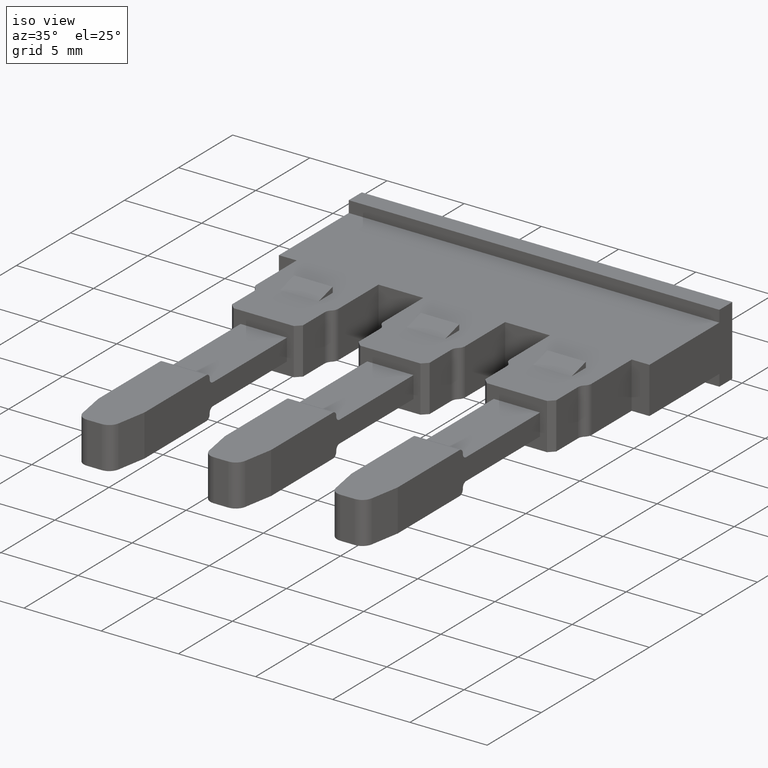
[diagram: clean part render]
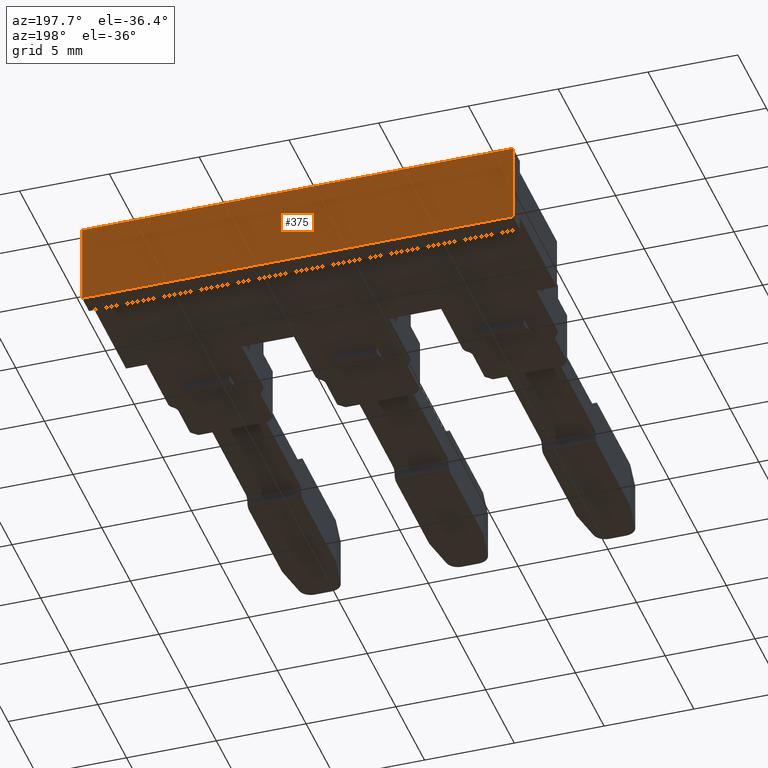
[diagram: tour spotlight — one face highlighted and labeled with its STEP entity id]
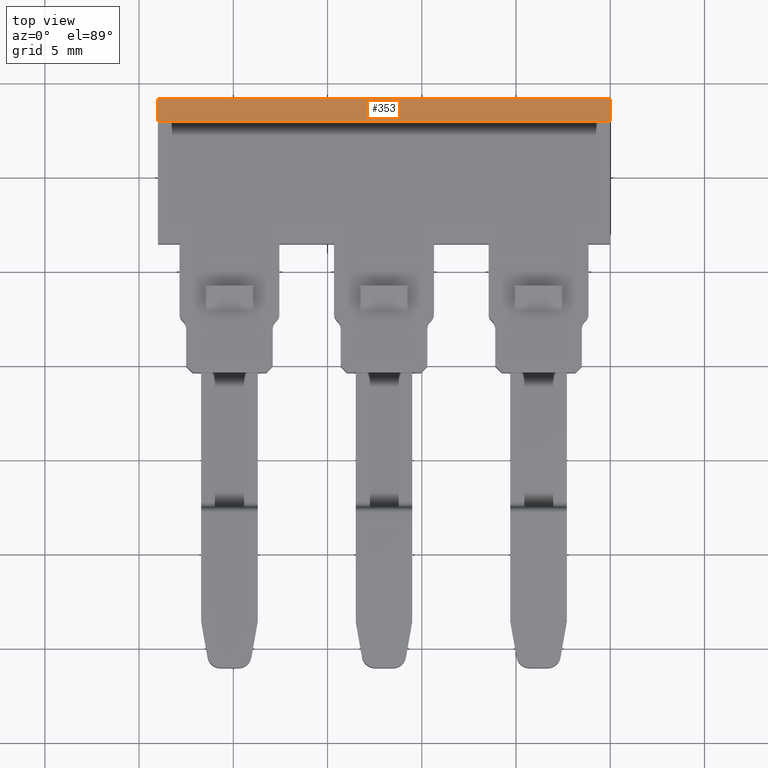
[diagram: tour spotlight — one face highlighted and labeled with its STEP entity id]
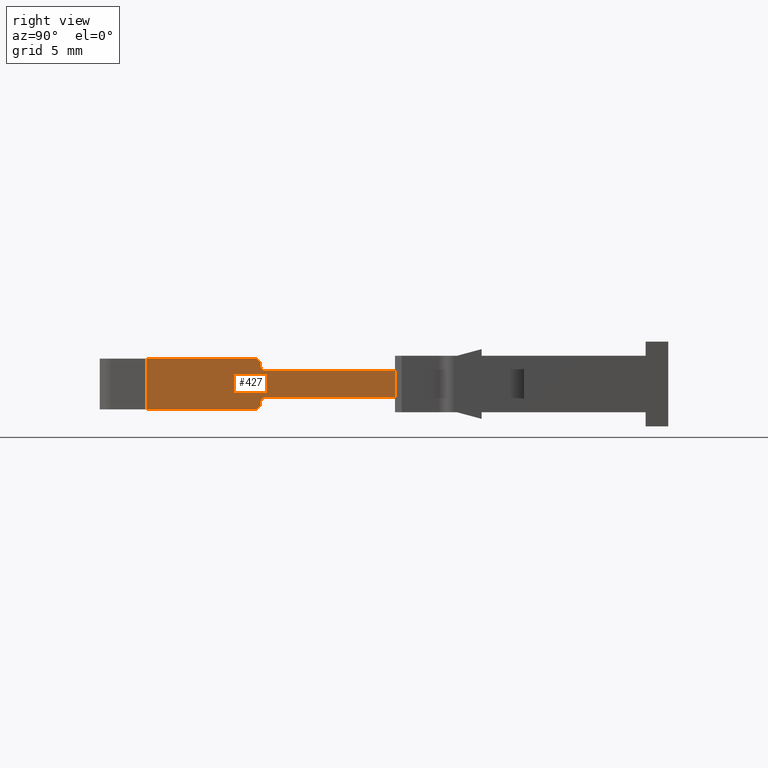
[diagram: tour spotlight — one face highlighted and labeled with its STEP entity id]
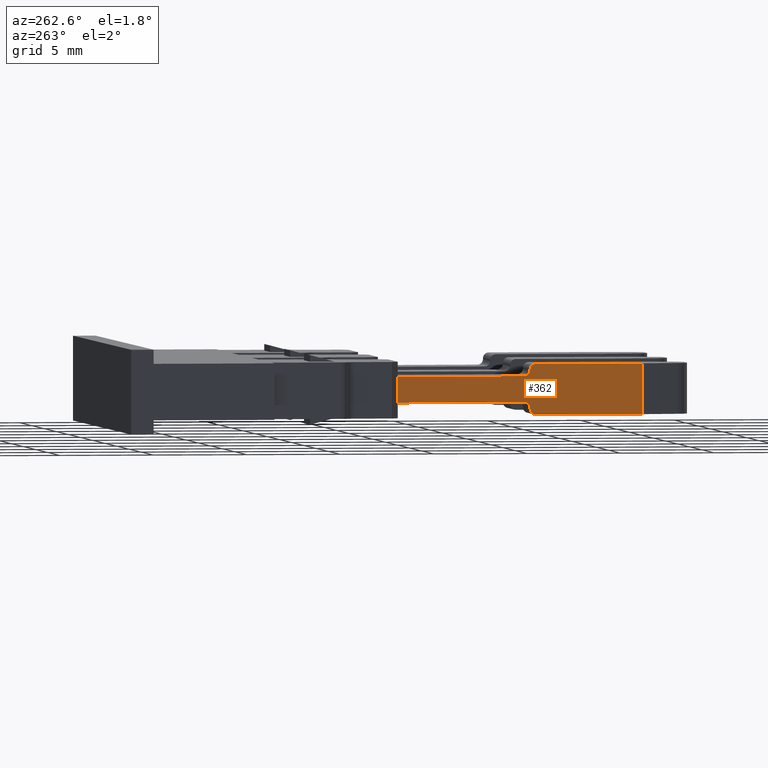
[diagram: tour spotlight — one face highlighted and labeled with its STEP entity id]
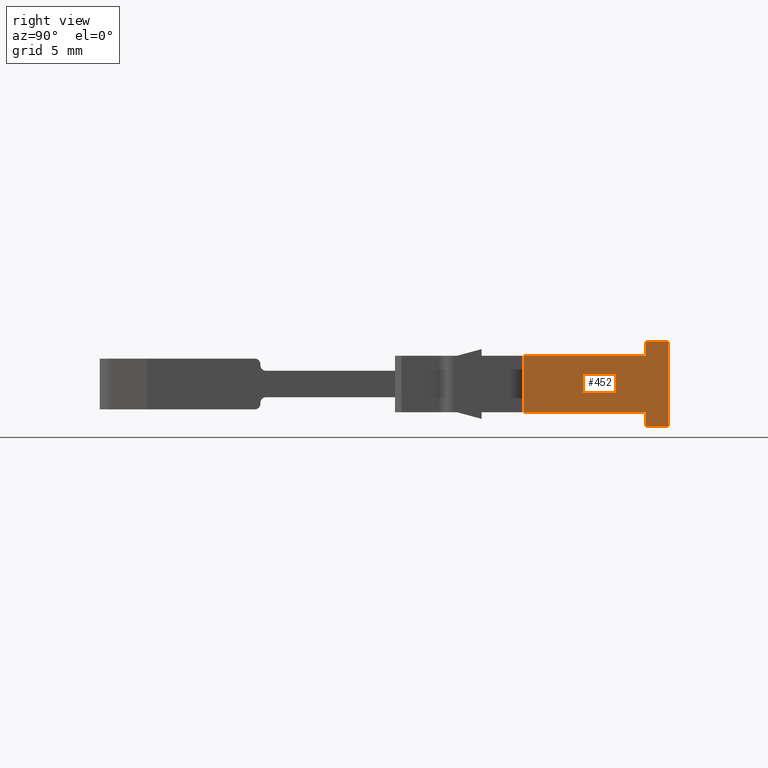
[diagram: tour spotlight — one face highlighted and labeled with its STEP entity id]
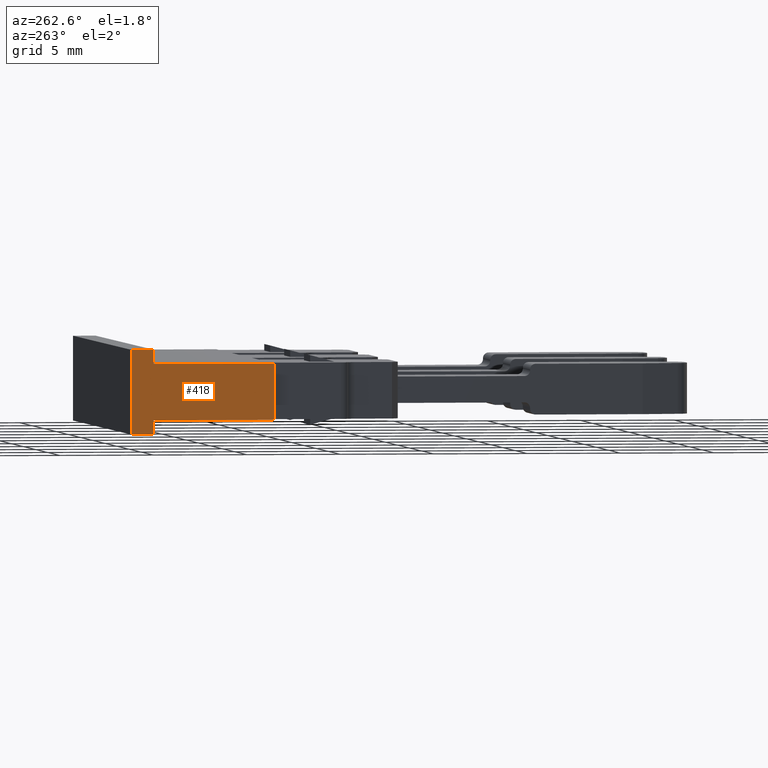
[diagram: tour spotlight — one face highlighted and labeled with its STEP entity id]
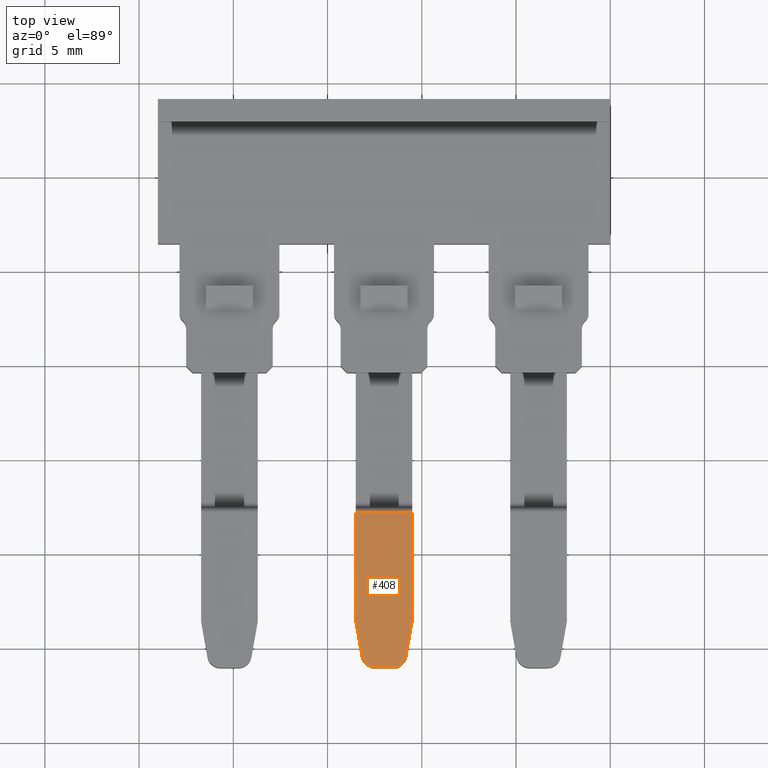
[diagram: tour spotlight — one face highlighted and labeled with its STEP entity id]
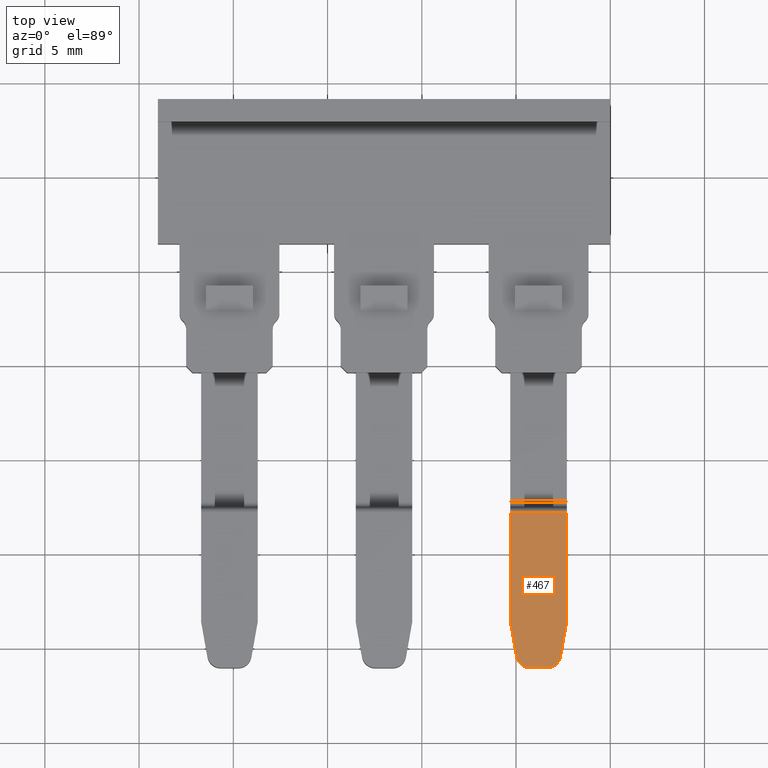
[diagram: tour spotlight — one face highlighted and labeled with its STEP entity id]
A machine part: a face-by-face anatomy tour. The part has 127 B-rep faces; the first image is the clean iso view, then the 8 largest visible faces are spotlighted one at a time (largest first), each with its STEP entity span.

Face 1 — auxiliary view, entity #375. In plain terms, the highlighted planar face has unit normal (0, -1, 0).
Definition (entity closure, byte-faithful):
#12 = EDGE_CURVE ( 'NONE', #1525, #1626, #700, .T. ) ;
#15 = EDGE_CURVE ( 'NONE', #1498, #1626, #680, .T. ) ;
#32 = EDGE_CURVE ( 'NONE', #1498, #1521, #728, .T. ) ;
#40 = EDGE_CURVE ( 'NONE', #1525, #1521, #802, .T. ) ;
#375 = ADVANCED_FACE ( 'NONE', ( #3418 ), #3429, .F. ) ;
#680 = LINE ( 'NONE', #688, #3543 ) ;
#687 = CARTESIAN_POINT ( 'NONE',  ( 1130.994470802330200, 674.1078760720547500, 3.000000000000000000 ) ) ;
#688 = CARTESIAN_POINT ( 'NONE',  ( 1130.994470802330200, 674.1078760720547500, 3.750000000000000000 ) ) ;
#694 = DIRECTION ( 'NONE',  ( -0.0000000000000000000, -0.0000000000000000000, 1.000000000000000000 ) ) ;
#700 = LINE ( 'NONE', #687, #3560 ) ;
#711 = DIRECTION ( 'NONE',  ( -1.000000000000000000, -0.0000000000000000000, -0.0000000000000000000 ) ) ;
#728 = LINE ( 'NONE', #755, #3609 ) ;
#746 = DIRECTION ( 'NONE',  ( -0.0000000000000000000, -0.0000000000000000000, -1.000000000000000000 ) ) ;
#755 = CARTESIAN_POINT ( 'NONE',  ( 1154.994472239529600, 674.1078760720547500, 3.000000000000000000 ) ) ;
#798 = DIRECTION ( 'NONE',  ( 1.000000000000000000, 0.0000000000000000000, 0.0000000000000000000 ) ) ;
#802 = LINE ( 'NONE', #803, #3611 ) ;
#803 = CARTESIAN_POINT ( 'NONE',  ( 1130.994470802330200, 674.1078760720547500, -0.7499999999999997800 ) ) ;
#1498 = VERTEX_POINT ( 'NONE', #3016 ) ;
#1521 = VERTEX_POINT ( 'NONE', #3001 ) ;
#1525 = VERTEX_POINT ( 'NONE', #3010 ) ;
#1626 = VERTEX_POINT ( 'NONE', #3051 ) ;
#1632 = ORIENTED_EDGE ( 'NONE', *, *, #15, .F. ) ;
#1642 = ORIENTED_EDGE ( 'NONE', *, *, #40, .F. ) ;
#1655 = ORIENTED_EDGE ( 'NONE', *, *, #32, .T. ) ;
#1659 = ORIENTED_EDGE ( 'NONE', *, *, #12, .T. ) ;
#2315 = EDGE_LOOP ( 'NONE', ( #1655, #1642, #1659, #1632 ) ) ;
#3001 = CARTESIAN_POINT ( 'NONE',  ( 1154.994472239529600, 674.1078760720547500, -0.7499999999999997800 ) ) ;
#3010 = CARTESIAN_POINT ( 'NONE',  ( 1130.994470802330200, 674.1078760720547500, -0.7499999999999997800 ) ) ;
#3016 = CARTESIAN_POINT ( 'NONE',  ( 1154.994472239529600, 674.1078760720547500, 3.750000000000000000 ) ) ;
#3051 = CARTESIAN_POINT ( 'NONE',  ( 1130.994470802330200, 674.1078760720547500, 3.750000000000000000 ) ) ;
#3400 = CARTESIAN_POINT ( 'NONE',  ( 1130.994470802330200, 674.1078760720547500, 3.000000000000000000 ) ) ;
#3406 = DIRECTION ( 'NONE',  ( 0.0000000000000000000, -1.000000000000000000, 0.0000000000000000000 ) ) ;
#3418 = FACE_OUTER_BOUND ( 'NONE', #2315, .T. ) ;
#3429 = PLANE ( 'NONE',  #3979 ) ;
#3438 = DIRECTION ( 'NONE',  ( 0.0000000000000000000, -0.0000000000000000000, -1.000000000000000000 ) ) ;
#3543 = VECTOR ( 'NONE', #711, 1000.000000000000000 ) ;
#3560 = VECTOR ( 'NONE', #694, 1000.000000000000000 ) ;
#3609 = VECTOR ( 'NONE', #746, 1000.000000000000000 ) ;
#3611 = VECTOR ( 'NONE', #798, 1000.000000000000000 ) ;
#3979 = AXIS2_PLACEMENT_3D ( 'NONE', #3400, #3406, #3438 ) ;

Face 2 — top view, entity #353. In plain terms, the highlighted planar face has unit normal (0, 0, 1).
Definition (entity closure, byte-faithful):
#13 = EDGE_CURVE ( 'NONE', #1626, #1624, #718, .T. ) ;
#15 = EDGE_CURVE ( 'NONE', #1498, #1626, #680, .T. ) ;
#28 = EDGE_CURVE ( 'NONE', #1620, #1624, #758, .T. ) ;
#29 = EDGE_CURVE ( 'NONE', #1620, #1498, #737, .T. ) ;
#353 = ADVANCED_FACE ( 'NONE', ( #3286 ), #3331, .T. ) ;
#676 = DIRECTION ( 'NONE',  ( 0.0000000000000000000, -1.000000000000000000, -0.0000000000000000000 ) ) ;
#680 = LINE ( 'NONE', #688, #3543 ) ;
#688 = CARTESIAN_POINT ( 'NONE',  ( 1130.994470802330200, 674.1078760720547500, 3.750000000000000000 ) ) ;
#711 = DIRECTION ( 'NONE',  ( -1.000000000000000000, -0.0000000000000000000, -0.0000000000000000000 ) ) ;
#717 = CARTESIAN_POINT ( 'NONE',  ( 1130.994470802330200, 672.9078760720548200, 3.750000000000000000 ) ) ;
#718 = LINE ( 'NONE', #717, #3545 ) ;
#725 = CARTESIAN_POINT ( 'NONE',  ( 1154.994472239529600, 672.9078760720548200, 3.750000000000000000 ) ) ;
#737 = LINE ( 'NONE', #725, #3587 ) ;
#748 = DIRECTION ( 'NONE',  ( -1.000000000000000000, -0.0000000000000000000, -0.0000000000000000000 ) ) ;
#758 = LINE ( 'NONE', #763, #3566 ) ;
#759 = DIRECTION ( 'NONE',  ( -0.0000000000000000000, 1.000000000000000000, 0.0000000000000000000 ) ) ;
#763 = CARTESIAN_POINT ( 'NONE',  ( 1130.994470802330200, 672.9078760720548200, 3.750000000000000000 ) ) ;
#1498 = VERTEX_POINT ( 'NONE', #3016 ) ;
#1620 = VERTEX_POINT ( 'NONE', #3064 ) ;
#1624 = VERTEX_POINT ( 'NONE', #3024 ) ;
#1626 = VERTEX_POINT ( 'NONE', #3051 ) ;
#1653 = ORIENTED_EDGE ( 'NONE', *, *, #13, .T. ) ;
#1677 = ORIENTED_EDGE ( 'NONE', *, *, #29, .T. ) ;
#1678 = ORIENTED_EDGE ( 'NONE', *, *, #15, .T. ) ;
#1692 = ORIENTED_EDGE ( 'NONE', *, *, #28, .F. ) ;
#2302 = EDGE_LOOP ( 'NONE', ( #1678, #1653, #1692, #1677 ) ) ;
#3016 = CARTESIAN_POINT ( 'NONE',  ( 1154.994472239529600, 674.1078760720547500, 3.750000000000000000 ) ) ;
#3024 = CARTESIAN_POINT ( 'NONE',  ( 1130.994470802330200, 672.9078760720548200, 3.750000000000000000 ) ) ;
#3051 = CARTESIAN_POINT ( 'NONE',  ( 1130.994470802330200, 674.1078760720547500, 3.750000000000000000 ) ) ;
#3064 = CARTESIAN_POINT ( 'NONE',  ( 1154.994472239529600, 672.9078760720548200, 3.750000000000000000 ) ) ;
#3286 = FACE_OUTER_BOUND ( 'NONE', #2302, .T. ) ;
#3287 = DIRECTION ( 'NONE',  ( 0.0000000000000000000, 0.0000000000000000000, 1.000000000000000000 ) ) ;
#3311 = CARTESIAN_POINT ( 'NONE',  ( 1130.994470802330200, 672.9078760720548200, 3.750000000000000000 ) ) ;
#3312 = DIRECTION ( 'NONE',  ( 1.000000000000000000, 0.0000000000000000000, -0.0000000000000000000 ) ) ;
#3331 = PLANE ( 'NONE',  #3987 ) ;
#3543 = VECTOR ( 'NONE', #711, 1000.000000000000000 ) ;
#3545 = VECTOR ( 'NONE', #676, 1000.000000000000000 ) ;
#3566 = VECTOR ( 'NONE', #748, 1000.000000000000000 ) ;
#3587 = VECTOR ( 'NONE', #759, 1000.000000000000000 ) ;
#3987 = AXIS2_PLACEMENT_3D ( 'NONE', #3311, #3287, #3312 ) ;

Face 3 — right view, entity #427. In plain terms, the highlighted planar face has unit normal (-1, -0, -0).
Definition (entity closure, byte-faithful):
#257 = EDGE_CURVE ( 'NONE', #631, #607, #1439, .T. ) ;
#271 = EDGE_CURVE ( 'NONE', #599, #628, #1482, .T. ) ;
#274 = EDGE_CURVE ( 'NONE', #639, #662, #3870, .T. ) ;
#287 = EDGE_CURVE ( 'NONE', #623, #612, #3106, .T. ) ;
#294 = EDGE_CURVE ( 'NONE', #597, #662, #3095, .T. ) ;
#310 = EDGE_CURVE ( 'NONE', #606, #639, #3175, .T. ) ;
#312 = EDGE_CURVE ( 'NONE', #628, #606, #3158, .T. ) ;
#332 = EDGE_CURVE ( 'NONE', #613, #603, #3217, .T. ) ;
#338 = EDGE_CURVE ( 'NONE', #603, #597, #3909, .T. ) ;
#343 = EDGE_CURVE ( 'NONE', #612, #631, #3916, .T. ) ;
#355 = EDGE_CURVE ( 'NONE', #623, #599, #3946, .T. ) ;
#358 = EDGE_CURVE ( 'NONE', #613, #607, #3329, .T. ) ;
#427 = ADVANCED_FACE ( 'NONE', ( #2575 ), #2577, .F. ) ;
#597 = VERTEX_POINT ( 'NONE', #2946 ) ;
#599 = VERTEX_POINT ( 'NONE', #2906 ) ;
#603 = VERTEX_POINT ( 'NONE', #2908 ) ;
#606 = VERTEX_POINT ( 'NONE', #2928 ) ;
#607 = VERTEX_POINT ( 'NONE', #2953 ) ;
#612 = VERTEX_POINT ( 'NONE', #2895 ) ;
#613 = VERTEX_POINT ( 'NONE', #2938 ) ;
#623 = VERTEX_POINT ( 'NONE', #2971 ) ;
#628 = VERTEX_POINT ( 'NONE', #2984 ) ;
#631 = VERTEX_POINT ( 'NONE', #3014 ) ;
#639 = VERTEX_POINT ( 'NONE', #2961 ) ;
#662 = VERTEX_POINT ( 'NONE', #2996 ) ;
#1414 = CARTESIAN_POINT ( 'NONE',  ( 1152.694499627732700, 641.3475629657206100, 0.8000061035156751400 ) ) ;
#1422 = DIRECTION ( 'NONE',  ( -1.259368144656452000E-037, 1.000000000000000000, 2.347622273454535600E-024 ) ) ;
#1439 = LINE ( 'NONE', #1414, #3863 ) ;
#1457 = CARTESIAN_POINT ( 'NONE',  ( 1152.694500057496300, 652.1699856249184700, 2.547804784775002100 ) ) ;
#1461 = DIRECTION ( 'NONE',  ( 7.162730294145293700E-007, -0.9999999999997434300, 0.0000000000000000000 ) ) ;
#1465 = DIRECTION ( 'NONE',  ( 7.162729668646924300E-007, -0.9999999999997435400, 0.0000000000000000000 ) ) ;
#1468 = CARTESIAN_POINT ( 'NONE',  ( 1152.694513078971600, 633.9904998856812900, 0.1522013187407241500 ) ) ;
#1469 = DIRECTION ( 'NONE',  ( -0.9999999999997435400, -7.162730294145294800E-007, -5.364441115149939900E-014 ) ) ;
#1482 = LINE ( 'NONE', #1468, #3822 ) ;
#1577 = EDGE_LOOP ( 'NONE', ( #2217, #2218, #2150, #2211, #2219, #2240, #2257, #2237, #2228, #2234, #2243, #2225 ) ) ;
#2150 = ORIENTED_EDGE ( 'NONE', *, *, #312, .F. ) ;
#2211 = ORIENTED_EDGE ( 'NONE', *, *, #271, .F. ) ;
#2217 = ORIENTED_EDGE ( 'NONE', *, *, #274, .F. ) ;
#2218 = ORIENTED_EDGE ( 'NONE', *, *, #310, .F. ) ;
#2219 = ORIENTED_EDGE ( 'NONE', *, *, #355, .F. ) ;
#2225 = ORIENTED_EDGE ( 'NONE', *, *, #294, .T. ) ;
#2228 = ORIENTED_EDGE ( 'NONE', *, *, #358, .F. ) ;
#2234 = ORIENTED_EDGE ( 'NONE', *, *, #332, .T. ) ;
#2237 = ORIENTED_EDGE ( 'NONE', *, *, #257, .T. ) ;
#2240 = ORIENTED_EDGE ( 'NONE', *, *, #287, .T. ) ;
#2243 = ORIENTED_EDGE ( 'NONE', *, *, #338, .T. ) ;
#2257 = ORIENTED_EDGE ( 'NONE', *, *, #343, .T. ) ;
#2569 = DIRECTION ( 'NONE',  ( 7.162730294145293700E-007, -0.9999999999997434300, 0.0000000000000000000 ) ) ;
#2575 = FACE_OUTER_BOUND ( 'NONE', #1577, .T. ) ;
#2577 = PLANE ( 'NONE',  #4063 ) ;
#2581 = DIRECTION ( 'NONE',  ( -0.9999999999997435400, -7.162730294145294800E-007, -5.364441115149939300E-014 ) ) ;
#2614 = CARTESIAN_POINT ( 'NONE',  ( 1152.694513078971600, 633.9904998856812900, 1.500000000000050400 ) ) ;
#2895 = CARTESIAN_POINT ( 'NONE',  ( 1152.694499842614500, 652.4699856249416100, 0.5000061035156794200 ) ) ;
#2906 = CARTESIAN_POINT ( 'NONE',  ( 1152.694500057496500, 652.1699856249251800, 0.1522013187407402500 ) ) ;
#2908 = CARTESIAN_POINT ( 'NONE',  ( 1152.694494728928900, 652.7699856250221700, 2.200000000000050400 ) ) ;
#2928 = CARTESIAN_POINT ( 'NONE',  ( 1152.694502719367600, 646.4455650513607500, 2.847804784775002300 ) ) ;
#2938 = CARTESIAN_POINT ( 'NONE',  ( 1152.694494728928900, 659.6092820011524500, 2.199999999999997100 ) ) ;
#2946 = CARTESIAN_POINT ( 'NONE',  ( 1152.694499842614300, 652.4699856249416100, 2.500000000000054200 ) ) ;
#2953 = CARTESIAN_POINT ( 'NONE',  ( 1152.694497994798000, 659.6092820011524500, 0.8000061035156753600 ) ) ;
#2961 = CARTESIAN_POINT ( 'NONE',  ( 1152.694500057496300, 652.1699856249198300, 2.847804784774985900 ) ) ;
#2971 = CARTESIAN_POINT ( 'NONE',  ( 1152.694499842614500, 652.4699856249416100, 0.4522013187406444000 ) ) ;
#2984 = CARTESIAN_POINT ( 'NONE',  ( 1152.694502762740300, 646.4455652973382500, 0.1522013187407222600 ) ) ;
#2996 = CARTESIAN_POINT ( 'NONE',  ( 1152.694499842614300, 652.4699856249416100, 2.547804784775004700 ) ) ;
#3014 = CARTESIAN_POINT ( 'NONE',  ( 1152.694499627732700, 652.7699856249647600, 0.8000061035156751400 ) ) ;
#3074 = DIRECTION ( 'NONE',  ( -7.385219485357330600E-024, -6.294261101327853900E-019, 1.000000000000000000 ) ) ;
#3081 = DIRECTION ( 'NONE',  ( -7.385219485357330600E-024, -6.294261101327853900E-019, 1.000000000000000000 ) ) ;
#3095 = LINE ( 'NONE', #3111, #3911 ) ;
#3096 = CARTESIAN_POINT ( 'NONE',  ( 1152.694499842614500, 652.4699856249416100, -8.884767489098056400 ) ) ;
#3106 = LINE ( 'NONE', #3096, #3843 ) ;
#3111 = CARTESIAN_POINT ( 'NONE',  ( 1152.694499842614300, 652.4699856249416100, -8.894767489098054400 ) ) ;
#3144 = CARTESIAN_POINT ( 'NONE',  ( 1152.694504157744400, 646.4455650513617700, 1.500000000000050400 ) ) ;
#3158 = LINE ( 'NONE', #3144, #3930 ) ;
#3171 = DIRECTION ( 'NONE',  ( -7.162730294145293700E-007, 0.9999999999997434300, -0.0000000000000000000 ) ) ;
#3175 = LINE ( 'NONE', #3186, #3890 ) ;
#3184 = DIRECTION ( 'NONE',  ( -5.364441115148562900E-014, -3.842404488664303600E-020, 1.000000000000000000 ) ) ;
#3186 = CARTESIAN_POINT ( 'NONE',  ( 1152.694513078971600, 633.9904998856812900, 2.847804784775002800 ) ) ;
#3217 = LINE ( 'NONE', #3232, #3936 ) ;
#3232 = CARTESIAN_POINT ( 'NONE',  ( 1152.694494728928900, 641.3475629657206100, 2.200000000000050400 ) ) ;
#3259 = DIRECTION ( 'NONE',  ( 7.162729668644273000E-007, -0.9999999999997435400, 0.0000000000000000000 ) ) ;
#3260 = DIRECTION ( 'NONE',  ( -0.9999999999997435400, -7.162730294145294800E-007, -5.364441115149939900E-014 ) ) ;
#3261 = DIRECTION ( 'NONE',  ( 1.259368144656452000E-037, -1.000000000000000000, -2.347622273454535600E-024 ) ) ;
#3272 = CARTESIAN_POINT ( 'NONE',  ( 1152.694499627732500, 652.7699856249647600, 2.500000000000050600 ) ) ;
#3274 = CARTESIAN_POINT ( 'NONE',  ( 1152.694499627732700, 652.7699856249647600, 0.5000061035156752000 ) ) ;
#3275 = DIRECTION ( 'NONE',  ( -0.9999999999997435400, -7.162730294145294800E-007, -5.364441115149939900E-014 ) ) ;
#3276 = DIRECTION ( 'NONE',  ( 7.162729668644273000E-007, -0.9999999999997435400, 0.0000000000000000000 ) ) ;
#3284 = DIRECTION ( 'NONE',  ( 5.364441115148562900E-014, 3.842404488664303600E-020, -1.000000000000000000 ) ) ;
#3301 = DIRECTION ( 'NONE',  ( -0.9999999999997435400, -7.162730294145294800E-007, -5.364441115149939900E-014 ) ) ;
#3307 = CARTESIAN_POINT ( 'NONE',  ( 1152.694500057496500, 652.1699856249185800, 0.4522013187407238300 ) ) ;
#3322 = DIRECTION ( 'NONE',  ( 7.162729668646924300E-007, -0.9999999999997435400, 0.0000000000000000000 ) ) ;
#3329 = LINE ( 'NONE', #3330, #3998 ) ;
#3330 = CARTESIAN_POINT ( 'NONE',  ( 1152.694494728928900, 659.6092820011524500, 1.500000000000050400 ) ) ;
#3822 = VECTOR ( 'NONE', #1461, 1000.000000000000100 ) ;
#3842 = AXIS2_PLACEMENT_3D ( 'NONE', #1457, #1469, #1465 ) ;
#3843 = VECTOR ( 'NONE', #3081, 1000.000000000000000 ) ;
#3863 = VECTOR ( 'NONE', #1422, 1000.000000000000000 ) ;
#3870 = CIRCLE ( 'NONE', #3842, 0.2999999999999328800 ) ;
#3890 = VECTOR ( 'NONE', #3171, 1000.000000000000100 ) ;
#3909 = CIRCLE ( 'NONE', #3914, 0.3000000000000439000 ) ;
#3911 = VECTOR ( 'NONE', #3074, 1000.000000000000000 ) ;
#3914 = AXIS2_PLACEMENT_3D ( 'NONE', #3272, #3260, #3259 ) ;
#3916 = CIRCLE ( 'NONE', #3931, 0.3000000000000439000 ) ;
#3930 = VECTOR ( 'NONE', #3184, 1000.000000000000000 ) ;
#3931 = AXIS2_PLACEMENT_3D ( 'NONE', #3274, #3275, #3276 ) ;
#3936 = VECTOR ( 'NONE', #3261, 1000.000000000000000 ) ;
#3946 = CIRCLE ( 'NONE', #3953, 0.2999999999999328800 ) ;
#3953 = AXIS2_PLACEMENT_3D ( 'NONE', #3307, #3301, #3322 ) ;
#3998 = VECTOR ( 'NONE', #3284, 1000.000000000000000 ) ;
#4063 = AXIS2_PLACEMENT_3D ( 'NONE', #2614, #2581, #2569 ) ;

Face 4 — auxiliary view, entity #362. In plain terms, the highlighted planar face has unit normal (1, 0, 0).
Definition (entity closure, byte-faithful):
#115 = EDGE_CURVE ( 'NONE', #555, #513, #3656, .T. ) ;
#133 = EDGE_CURVE ( 'NONE', #570, #588, #1057, .T. ) ;
#135 = EDGE_CURVE ( 'NONE', #571, #582, #1078, .T. ) ;
#137 = EDGE_CURVE ( 'NONE', #549, #509, #1062, .T. ) ;
#148 = EDGE_CURVE ( 'NONE', #509, #555, #1075, .T. ) ;
#149 = EDGE_CURVE ( 'NONE', #567, #586, #3744, .T. ) ;
#160 = EDGE_CURVE ( 'NONE', #567, #605, #1120, .T. ) ;
#169 = EDGE_CURVE ( 'NONE', #605, #570, #3715, .T. ) ;
#175 = EDGE_CURVE ( 'NONE', #582, #545, #3721, .T. ) ;
#187 = EDGE_CURVE ( 'NONE', #545, #513, #1197, .T. ) ;
#212 = EDGE_CURVE ( 'NONE', #571, #588, #1275, .T. ) ;
#227 = EDGE_CURVE ( 'NONE', #586, #549, #1319, .T. ) ;
#362 = ADVANCED_FACE ( 'NONE', ( #3340 ), #3353, .F. ) ;
#509 = VERTEX_POINT ( 'NONE', #2876 ) ;
#513 = VERTEX_POINT ( 'NONE', #2829 ) ;
#545 = VERTEX_POINT ( 'NONE', #2862 ) ;
#549 = VERTEX_POINT ( 'NONE', #2888 ) ;
#555 = VERTEX_POINT ( 'NONE', #2896 ) ;
#567 = VERTEX_POINT ( 'NONE', #2901 ) ;
#570 = VERTEX_POINT ( 'NONE', #2900 ) ;
#571 = VERTEX_POINT ( 'NONE', #2919 ) ;
#582 = VERTEX_POINT ( 'NONE', #2935 ) ;
#586 = VERTEX_POINT ( 'NONE', #2922 ) ;
#588 = VERTEX_POINT ( 'NONE', #2952 ) ;
#605 = VERTEX_POINT ( 'NONE', #2924 ) ;
#996 = CARTESIAN_POINT ( 'NONE',  ( 1133.294493787258300, 652.1700208247687000, 0.4522013187405629100 ) ) ;
#1005 = DIRECTION ( 'NONE',  ( -8.155698338897270800E-008, 0.9999999999999966700, 0.0000000000000000000 ) ) ;
#1030 = DIRECTION ( 'NONE',  ( 0.9999999999999967800, 8.155722747765770400E-008, 5.364441115151301200E-014 ) ) ;
#1043 = CARTESIAN_POINT ( 'NONE',  ( 1133.294493372181700, 641.3475629657206100, 0.8000061035155142700 ) ) ;
#1048 = DIRECTION ( 'NONE',  ( 5.364441115151282900E-014, 4.375089443188943600E-021, -1.000000000000000000 ) ) ;
#1051 = CARTESIAN_POINT ( 'NONE',  ( 1133.294493738323800, 641.3475629657206100, 2.199999999999889600 ) ) ;
#1053 = CARTESIAN_POINT ( 'NONE',  ( 1133.294494254128900, 646.4455650513584700, 1.499999999999889400 ) ) ;
#1057 = LINE ( 'NONE', #1051, #3738 ) ;
#1058 = DIRECTION ( 'NONE',  ( 1.259368144656452000E-037, -1.000000000000000000, -2.347622273454535600E-024 ) ) ;
#1062 = LINE ( 'NONE', #1053, #3722 ) ;
#1075 = LINE ( 'NONE', #1132, #3727 ) ;
#1078 = LINE ( 'NONE', #1043, #3729 ) ;
#1084 = DIRECTION ( 'NONE',  ( -1.259368144656452000E-037, 1.000000000000000000, 2.347622273454535600E-024 ) ) ;
#1087 = DIRECTION ( 'NONE',  ( -8.155698338897270800E-008, 0.9999999999999966700, 0.0000000000000000000 ) ) ;
#1095 = CARTESIAN_POINT ( 'NONE',  ( 1133.294493787258000, 652.1700208247685900, 2.547804784774841300 ) ) ;
#1098 = DIRECTION ( 'NONE',  ( -8.155722747765769100E-008, 0.9999999999999966700, 0.0000000000000000000 ) ) ;
#1100 = DIRECTION ( 'NONE',  ( 0.9999999999999967800, 8.155722747765770400E-008, 5.364441115151301200E-014 ) ) ;
#1120 = LINE ( 'NONE', #1125, #3692 ) ;
#1124 = DIRECTION ( 'NONE',  ( 7.385219485357330600E-024, 6.294261101327853900E-019, -1.000000000000000000 ) ) ;
#1125 = CARTESIAN_POINT ( 'NONE',  ( 1133.294493762790600, 652.4700208247895700, -8.894767489098054400 ) ) ;
#1132 = CARTESIAN_POINT ( 'NONE',  ( 1133.294495269929700, 633.9904964572250500, 0.1522013187405610900 ) ) ;
#1137 = DIRECTION ( 'NONE',  ( -8.155698338897270800E-008, 0.9999999999999966700, 0.0000000000000000000 ) ) ;
#1148 = CARTESIAN_POINT ( 'NONE',  ( 1133.294493738323800, 652.7700208248105600, 2.499999999999889900 ) ) ;
#1159 = DIRECTION ( 'NONE',  ( 0.9999999999999967800, 8.155722747765770400E-008, 5.364441115151301200E-014 ) ) ;
#1181 = CARTESIAN_POINT ( 'NONE',  ( 1133.294493762790800, 652.4700208247895700, -8.894767489098054400 ) ) ;
#1197 = LINE ( 'NONE', #1181, #3801 ) ;
#1198 = DIRECTION ( 'NONE',  ( -8.155698338897270800E-008, 0.9999999999999966700, 0.0000000000000000000 ) ) ;
#1199 = DIRECTION ( 'NONE',  ( 0.9999999999999967800, 8.155722747765770400E-008, 5.364441115151301200E-014 ) ) ;
#1211 = CARTESIAN_POINT ( 'NONE',  ( 1133.294493738323800, 652.7700208248105600, 0.5000061035155143300 ) ) ;
#1220 = DIRECTION ( 'NONE',  ( 7.385219485357330600E-024, 6.294261101327853900E-019, -1.000000000000000000 ) ) ;
#1275 = LINE ( 'NONE', #1276, #3806 ) ;
#1276 = CARTESIAN_POINT ( 'NONE',  ( 1133.294493180532800, 659.6092820011524500, 1.499999999999889400 ) ) ;
#1303 = DIRECTION ( 'NONE',  ( -5.364441115151282900E-014, -4.375089443188943600E-021, 1.000000000000000000 ) ) ;
#1319 = LINE ( 'NONE', #1324, #3795 ) ;
#1320 = DIRECTION ( 'NONE',  ( 8.155722747765769100E-008, -0.9999999999999966700, -0.0000000000000000000 ) ) ;
#1324 = CARTESIAN_POINT ( 'NONE',  ( 1133.294495269929700, 633.9904964572250500, 2.847804784774841100 ) ) ;
#1778 = ORIENTED_EDGE ( 'NONE', *, *, #175, .T. ) ;
#1783 = ORIENTED_EDGE ( 'NONE', *, *, #137, .F. ) ;
#1833 = ORIENTED_EDGE ( 'NONE', *, *, #212, .F. ) ;
#1839 = ORIENTED_EDGE ( 'NONE', *, *, #227, .F. ) ;
#1841 = ORIENTED_EDGE ( 'NONE', *, *, #160, .T. ) ;
#1846 = ORIENTED_EDGE ( 'NONE', *, *, #115, .F. ) ;
#1859 = ORIENTED_EDGE ( 'NONE', *, *, #169, .T. ) ;
#1867 = ORIENTED_EDGE ( 'NONE', *, *, #133, .T. ) ;
#1869 = ORIENTED_EDGE ( 'NONE', *, *, #148, .F. ) ;
#1871 = ORIENTED_EDGE ( 'NONE', *, *, #149, .F. ) ;
#1874 = ORIENTED_EDGE ( 'NONE', *, *, #187, .T. ) ;
#1891 = ORIENTED_EDGE ( 'NONE', *, *, #135, .T. ) ;
#2345 = EDGE_LOOP ( 'NONE', ( #1871, #1841, #1859, #1867, #1833, #1891, #1778, #1874, #1846, #1869, #1783, #1839 ) ) ;
#2829 = CARTESIAN_POINT ( 'NONE',  ( 1133.294493762790800, 652.4700208247895700, 0.4522013187405656800 ) ) ;
#2862 = CARTESIAN_POINT ( 'NONE',  ( 1133.294493762790800, 652.4700208247895700, 0.5000061035155181100 ) ) ;
#2876 = CARTESIAN_POINT ( 'NONE',  ( 1133.294494090349600, 646.4455650513584700, 0.1522013187405617000 ) ) ;
#2888 = CARTESIAN_POINT ( 'NONE',  ( 1133.294494254128900, 646.4455650513584700, 2.847804784774840700 ) ) ;
#2896 = CARTESIAN_POINT ( 'NONE',  ( 1133.294493787258300, 652.1700208247687000, 0.1522013187405787900 ) ) ;
#2900 = CARTESIAN_POINT ( 'NONE',  ( 1133.294493738323800, 652.7700208248105600, 2.199999999999889600 ) ) ;
#2901 = CARTESIAN_POINT ( 'NONE',  ( 1133.294493762790800, 652.4700208247895700, 2.547804784774922600 ) ) ;
#2919 = CARTESIAN_POINT ( 'NONE',  ( 1133.294493308298800, 659.6092820011524500, 0.8000061035155680000 ) ) ;
#2922 = CARTESIAN_POINT ( 'NONE',  ( 1133.294493787258000, 652.1700208247740400, 2.847804784774824700 ) ) ;
#2924 = CARTESIAN_POINT ( 'NONE',  ( 1133.294493762790600, 652.4700208247895700, 2.499999999999893000 ) ) ;
#2935 = CARTESIAN_POINT ( 'NONE',  ( 1133.294493372181700, 652.7700208248147600, 0.8000061035155142700 ) ) ;
#2952 = CARTESIAN_POINT ( 'NONE',  ( 1133.294493552393500, 659.6092820011524500, 2.199999999999889600 ) ) ;
#3340 = FACE_OUTER_BOUND ( 'NONE', #2345, .T. ) ;
#3345 = DIRECTION ( 'NONE',  ( -8.155722747765769100E-008, 0.9999999999999966700, 0.0000000000000000000 ) ) ;
#3353 = PLANE ( 'NONE',  #3995 ) ;
#3358 = CARTESIAN_POINT ( 'NONE',  ( 1133.294495269929700, 633.9904964572250500, 1.499999999999889400 ) ) ;
#3365 = DIRECTION ( 'NONE',  ( 0.9999999999999966700, 8.155722747765769100E-008, 5.364441115151301200E-014 ) ) ;
#3630 = AXIS2_PLACEMENT_3D ( 'NONE', #996, #1030, #1005 ) ;
#3656 = CIRCLE ( 'NONE', #3630, 0.2999999999999679600 ) ;
#3692 = VECTOR ( 'NONE', #1124, 1000.000000000000000 ) ;
#3715 = CIRCLE ( 'NONE', #3740, 0.2999999999999679600 ) ;
#3721 = CIRCLE ( 'NONE', #3724, 0.2999999999999679600 ) ;
#3722 = VECTOR ( 'NONE', #1048, 1000.000000000000000 ) ;
#3724 = AXIS2_PLACEMENT_3D ( 'NONE', #1211, #1199, #1198 ) ;
#3727 = VECTOR ( 'NONE', #1098, 1000.000000000000100 ) ;
#3729 = VECTOR ( 'NONE', #1058, 1000.000000000000000 ) ;
#3731 = AXIS2_PLACEMENT_3D ( 'NONE', #1095, #1100, #1087 ) ;
#3738 = VECTOR ( 'NONE', #1084, 1000.000000000000000 ) ;
#3740 = AXIS2_PLACEMENT_3D ( 'NONE', #1148, #1159, #1137 ) ;
#3744 = CIRCLE ( 'NONE', #3731, 0.2999999999999679600 ) ;
#3795 = VECTOR ( 'NONE', #1320, 1000.000000000000100 ) ;
#3801 = VECTOR ( 'NONE', #1220, 1000.000000000000000 ) ;
#3806 = VECTOR ( 'NONE', #1303, 1000.000000000000000 ) ;
#3995 = AXIS2_PLACEMENT_3D ( 'NONE', #3358, #3365, #3345 ) ;

Face 5 — right view, entity #452. In plain terms, the highlighted planar face has unit normal (-1, 0, 0).
Definition (entity closure, byte-faithful):
#27 = EDGE_CURVE ( 'NONE', #1623, #1620, #723, .T. ) ;
#29 = EDGE_CURVE ( 'NONE', #1620, #1498, #737, .T. ) ;
#32 = EDGE_CURVE ( 'NONE', #1498, #1521, #728, .T. ) ;
#36 = EDGE_CURVE ( 'NONE', #1521, #1628, #752, .T. ) ;
#45 = EDGE_CURVE ( 'NONE', #1534, #1623, #780, .T. ) ;
#77 = EDGE_CURVE ( 'NONE', #1628, #1495, #898, .T. ) ;
#120 = EDGE_CURVE ( 'NONE', #490, #1495, #1006, .T. ) ;
#268 = EDGE_CURVE ( 'NONE', #490, #1534, #1401, .T. ) ;
#452 = ADVANCED_FACE ( 'NONE', ( #2690 ), #2684, .F. ) ;
#490 = VERTEX_POINT ( 'NONE', #2845 ) ;
#721 = CARTESIAN_POINT ( 'NONE',  ( 1154.994472239529600, 674.1078760720547500, -0.7499999999999997800 ) ) ;
#723 = LINE ( 'NONE', #756, #3565 ) ;
#725 = CARTESIAN_POINT ( 'NONE',  ( 1154.994472239529600, 672.9078760720548200, 3.750000000000000000 ) ) ;
#728 = LINE ( 'NONE', #755, #3609 ) ;
#735 = DIRECTION ( 'NONE',  ( -0.0000000000000000000, 0.0000000000000000000, 1.000000000000000000 ) ) ;
#737 = LINE ( 'NONE', #725, #3587 ) ;
#743 = DIRECTION ( 'NONE',  ( -0.0000000000000000000, -1.000000000000000000, 0.0000000000000000000 ) ) ;
#746 = DIRECTION ( 'NONE',  ( -0.0000000000000000000, -0.0000000000000000000, -1.000000000000000000 ) ) ;
#752 = LINE ( 'NONE', #721, #3610 ) ;
#755 = CARTESIAN_POINT ( 'NONE',  ( 1154.994472239529600, 674.1078760720547500, 3.000000000000000000 ) ) ;
#756 = CARTESIAN_POINT ( 'NONE',  ( 1154.994472239529600, 672.9078760720548200, -0.7499999999999997800 ) ) ;
#759 = DIRECTION ( 'NONE',  ( -0.0000000000000000000, 1.000000000000000000, 0.0000000000000000000 ) ) ;
#768 = DIRECTION ( 'NONE',  ( 0.0000000000000000000, 1.000000000000000000, -0.0000000000000000000 ) ) ;
#777 = CARTESIAN_POINT ( 'NONE',  ( 1154.994472239529600, 674.1078760720547500, 3.000000000000000000 ) ) ;
#780 = LINE ( 'NONE', #777, #3590 ) ;
#859 = DIRECTION ( 'NONE',  ( -0.0000000000000000000, 0.0000000000000000000, 1.000000000000000000 ) ) ;
#891 = CARTESIAN_POINT ( 'NONE',  ( 1154.994472239529600, 672.9078760720548200, -0.7499999999999997800 ) ) ;
#898 = LINE ( 'NONE', #891, #3621 ) ;
#1001 = CARTESIAN_POINT ( 'NONE',  ( 1154.994472239529600, 662.7578638201010800, 0.0000000000000000000 ) ) ;
#1002 = DIRECTION ( 'NONE',  ( -0.0000000000000000000, 1.000000000000000000, 0.0000000000000000000 ) ) ;
#1006 = LINE ( 'NONE', #1001, #3689 ) ;
#1401 = LINE ( 'NONE', #1466, #3846 ) ;
#1464 = DIRECTION ( 'NONE',  ( 0.0000000000000000000, 0.0000000000000000000, 1.000000000000000000 ) ) ;
#1466 = CARTESIAN_POINT ( 'NONE',  ( 1154.994472239529600, 666.4412575163982000, 3.000000000000000000 ) ) ;
#1495 = VERTEX_POINT ( 'NONE', #2965 ) ;
#1498 = VERTEX_POINT ( 'NONE', #3016 ) ;
#1521 = VERTEX_POINT ( 'NONE', #3001 ) ;
#1534 = VERTEX_POINT ( 'NONE', #3047 ) ;
#1606 = EDGE_LOOP ( 'NONE', ( #2312, #2308, #2277, #2310, #2307, #2294, #2306, #2275 ) ) ;
#1620 = VERTEX_POINT ( 'NONE', #3064 ) ;
#1623 = VERTEX_POINT ( 'NONE', #3058 ) ;
#1628 = VERTEX_POINT ( 'NONE', #3027 ) ;
#2275 = ORIENTED_EDGE ( 'NONE', *, *, #120, .T. ) ;
#2277 = ORIENTED_EDGE ( 'NONE', *, *, #32, .F. ) ;
#2294 = ORIENTED_EDGE ( 'NONE', *, *, #45, .F. ) ;
#2306 = ORIENTED_EDGE ( 'NONE', *, *, #268, .F. ) ;
#2307 = ORIENTED_EDGE ( 'NONE', *, *, #27, .F. ) ;
#2308 = ORIENTED_EDGE ( 'NONE', *, *, #36, .F. ) ;
#2310 = ORIENTED_EDGE ( 'NONE', *, *, #29, .F. ) ;
#2312 = ORIENTED_EDGE ( 'NONE', *, *, #77, .F. ) ;
#2677 = DIRECTION ( 'NONE',  ( 0.0000000000000000000, 0.0000000000000000000, 1.000000000000000000 ) ) ;
#2684 = PLANE ( 'NONE',  #4038 ) ;
#2690 = FACE_OUTER_BOUND ( 'NONE', #1606, .T. ) ;
#2696 = DIRECTION ( 'NONE',  ( -1.000000000000000000, 0.0000000000000000000, 0.0000000000000000000 ) ) ;
#2716 = CARTESIAN_POINT ( 'NONE',  ( 1154.994472239529600, 674.1078760720547500, 3.000000000000000000 ) ) ;
#2845 = CARTESIAN_POINT ( 'NONE',  ( 1154.994472239529600, 666.4412575163982000, 0.0000000000000000000 ) ) ;
#2965 = CARTESIAN_POINT ( 'NONE',  ( 1154.994472239529600, 672.9078760720548200, 0.0000000000000000000 ) ) ;
#3001 = CARTESIAN_POINT ( 'NONE',  ( 1154.994472239529600, 674.1078760720547500, -0.7499999999999997800 ) ) ;
#3016 = CARTESIAN_POINT ( 'NONE',  ( 1154.994472239529600, 674.1078760720547500, 3.750000000000000000 ) ) ;
#3027 = CARTESIAN_POINT ( 'NONE',  ( 1154.994472239529600, 672.9078760720548200, -0.7499999999999997800 ) ) ;
#3047 = CARTESIAN_POINT ( 'NONE',  ( 1154.994472239529600, 666.4412575163982000, 3.000000000000000000 ) ) ;
#3058 = CARTESIAN_POINT ( 'NONE',  ( 1154.994472239529600, 672.9078760720548200, 3.000000000000000000 ) ) ;
#3064 = CARTESIAN_POINT ( 'NONE',  ( 1154.994472239529600, 672.9078760720548200, 3.750000000000000000 ) ) ;
#3565 = VECTOR ( 'NONE', #735, 1000.000000000000000 ) ;
#3587 = VECTOR ( 'NONE', #759, 1000.000000000000000 ) ;
#3590 = VECTOR ( 'NONE', #768, 1000.000000000000000 ) ;
#3609 = VECTOR ( 'NONE', #746, 1000.000000000000000 ) ;
#3610 = VECTOR ( 'NONE', #743, 1000.000000000000000 ) ;
#3621 = VECTOR ( 'NONE', #859, 1000.000000000000000 ) ;
#3689 = VECTOR ( 'NONE', #1002, 1000.000000000000000 ) ;
#3846 = VECTOR ( 'NONE', #1464, 1000.000000000000000 ) ;
#4038 = AXIS2_PLACEMENT_3D ( 'NONE', #2716, #2696, #2677 ) ;

Face 6 — auxiliary view, entity #418. In plain terms, the highlighted planar face has unit normal (1, -0, 0).
Definition (entity closure, byte-faithful):
#11 = EDGE_CURVE ( 'NONE', #1624, #1618, #686, .T. ) ;
#12 = EDGE_CURVE ( 'NONE', #1525, #1626, #700, .T. ) ;
#13 = EDGE_CURVE ( 'NONE', #1626, #1624, #718, .T. ) ;
#47 = EDGE_CURVE ( 'NONE', #1525, #1627, #807, .T. ) ;
#56 = EDGE_CURVE ( 'NONE', #1618, #1531, #830, .T. ) ;
#67 = EDGE_CURVE ( 'NONE', #491, #502, #834, .T. ) ;
#74 = EDGE_CURVE ( 'NONE', #491, #1627, #886, .T. ) ;
#251 = EDGE_CURVE ( 'NONE', #1531, #502, #1426, .T. ) ;
#418 = ADVANCED_FACE ( 'NONE', ( #2517 ), #2554, .F. ) ;
#491 = VERTEX_POINT ( 'NONE', #2833 ) ;
#502 = VERTEX_POINT ( 'NONE', #2848 ) ;
#676 = DIRECTION ( 'NONE',  ( 0.0000000000000000000, -1.000000000000000000, -0.0000000000000000000 ) ) ;
#681 = DIRECTION ( 'NONE',  ( 0.0000000000000000000, -0.0000000000000000000, -1.000000000000000000 ) ) ;
#686 = LINE ( 'NONE', #702, #3541 ) ;
#687 = CARTESIAN_POINT ( 'NONE',  ( 1130.994470802330200, 674.1078760720547500, 3.000000000000000000 ) ) ;
#694 = DIRECTION ( 'NONE',  ( -0.0000000000000000000, -0.0000000000000000000, 1.000000000000000000 ) ) ;
#700 = LINE ( 'NONE', #687, #3560 ) ;
#702 = CARTESIAN_POINT ( 'NONE',  ( 1130.994470802330200, 672.9078760720548200, -0.7499999999999997800 ) ) ;
#717 = CARTESIAN_POINT ( 'NONE',  ( 1130.994470802330200, 672.9078760720548200, 3.750000000000000000 ) ) ;
#718 = LINE ( 'NONE', #717, #3545 ) ;
#785 = DIRECTION ( 'NONE',  ( 0.0000000000000000000, -1.000000000000000000, -0.0000000000000000000 ) ) ;
#800 = CARTESIAN_POINT ( 'NONE',  ( 1130.994470802330200, 672.9078760720548200, -0.7499999999999997800 ) ) ;
#807 = LINE ( 'NONE', #800, #3582 ) ;
#818 = DIRECTION ( 'NONE',  ( -0.0000000000000000000, -1.000000000000000000, -0.0000000000000000000 ) ) ;
#830 = LINE ( 'NONE', #845, #3579 ) ;
#834 = LINE ( 'NONE', #837, #3603 ) ;
#837 = CARTESIAN_POINT ( 'NONE',  ( 1130.994470802330200, 662.7578638201010800, 0.0000000000000000000 ) ) ;
#841 = DIRECTION ( 'NONE',  ( 0.0000000000000000000, -1.000000000000000000, -0.0000000000000000000 ) ) ;
#845 = CARTESIAN_POINT ( 'NONE',  ( 1130.994470802330200, 666.4412584401425200, 3.000000000000000000 ) ) ;
#867 = DIRECTION ( 'NONE',  ( 0.0000000000000000000, 0.0000000000000000000, -1.000000000000000000 ) ) ;
#875 = CARTESIAN_POINT ( 'NONE',  ( 1130.994470802330200, 672.9078760720548200, 3.000000000000000000 ) ) ;
#886 = LINE ( 'NONE', #875, #3618 ) ;
#1410 = CARTESIAN_POINT ( 'NONE',  ( 1130.994470802330200, 666.4412584401425200, 3.000000000000000000 ) ) ;
#1426 = LINE ( 'NONE', #1410, #3845 ) ;
#1427 = DIRECTION ( 'NONE',  ( 0.0000000000000000000, 0.0000000000000000000, -1.000000000000000000 ) ) ;
#1525 = VERTEX_POINT ( 'NONE', #3010 ) ;
#1531 = VERTEX_POINT ( 'NONE', #3049 ) ;
#1618 = VERTEX_POINT ( 'NONE', #3041 ) ;
#1624 = VERTEX_POINT ( 'NONE', #3024 ) ;
#1626 = VERTEX_POINT ( 'NONE', #3051 ) ;
#1627 = VERTEX_POINT ( 'NONE', #3021 ) ;
#1829 = ORIENTED_EDGE ( 'NONE', *, *, #56, .F. ) ;
#1850 = ORIENTED_EDGE ( 'NONE', *, *, #251, .F. ) ;
#1865 = ORIENTED_EDGE ( 'NONE', *, *, #47, .T. ) ;
#1879 = ORIENTED_EDGE ( 'NONE', *, *, #13, .F. ) ;
#1915 = ORIENTED_EDGE ( 'NONE', *, *, #67, .T. ) ;
#1930 = ORIENTED_EDGE ( 'NONE', *, *, #74, .F. ) ;
#1933 = ORIENTED_EDGE ( 'NONE', *, *, #11, .F. ) ;
#1954 = ORIENTED_EDGE ( 'NONE', *, *, #12, .F. ) ;
#2389 = EDGE_LOOP ( 'NONE', ( #1933, #1879, #1954, #1865, #1930, #1915, #1850, #1829 ) ) ;
#2517 = FACE_OUTER_BOUND ( 'NONE', #2389, .T. ) ;
#2530 = CARTESIAN_POINT ( 'NONE',  ( 1130.994470802330200, 666.4412584401425200, 3.000000000000000000 ) ) ;
#2534 = DIRECTION ( 'NONE',  ( 1.000000000000000000, -0.0000000000000000000, 0.0000000000000000000 ) ) ;
#2543 = DIRECTION ( 'NONE',  ( 0.0000000000000000000, 0.0000000000000000000, -1.000000000000000000 ) ) ;
#2554 = PLANE ( 'NONE',  #4049 ) ;
#2833 = CARTESIAN_POINT ( 'NONE',  ( 1130.994470802330200, 672.9078760720548200, 0.0000000000000000000 ) ) ;
#2848 = CARTESIAN_POINT ( 'NONE',  ( 1130.994470802330200, 666.4412584401425200, 0.0000000000000000000 ) ) ;
#3010 = CARTESIAN_POINT ( 'NONE',  ( 1130.994470802330200, 674.1078760720547500, -0.7499999999999997800 ) ) ;
#3021 = CARTESIAN_POINT ( 'NONE',  ( 1130.994470802330200, 672.9078760720548200, -0.7499999999999997800 ) ) ;
#3024 = CARTESIAN_POINT ( 'NONE',  ( 1130.994470802330200, 672.9078760720548200, 3.750000000000000000 ) ) ;
#3041 = CARTESIAN_POINT ( 'NONE',  ( 1130.994470802330200, 672.9078760720548200, 3.000000000000000000 ) ) ;
#3049 = CARTESIAN_POINT ( 'NONE',  ( 1130.994470802330200, 666.4412584401425200, 3.000000000000000000 ) ) ;
#3051 = CARTESIAN_POINT ( 'NONE',  ( 1130.994470802330200, 674.1078760720547500, 3.750000000000000000 ) ) ;
#3541 = VECTOR ( 'NONE', #681, 1000.000000000000000 ) ;
#3545 = VECTOR ( 'NONE', #676, 1000.000000000000000 ) ;
#3560 = VECTOR ( 'NONE', #694, 1000.000000000000000 ) ;
#3579 = VECTOR ( 'NONE', #818, 1000.000000000000000 ) ;
#3582 = VECTOR ( 'NONE', #785, 1000.000000000000000 ) ;
#3603 = VECTOR ( 'NONE', #841, 1000.000000000000000 ) ;
#3618 = VECTOR ( 'NONE', #867, 1000.000000000000000 ) ;
#3845 = VECTOR ( 'NONE', #1427, 1000.000000000000000 ) ;
#4049 = AXIS2_PLACEMENT_3D ( 'NONE', #2530, #2534, #2543 ) ;

Face 7 — top view, entity #408. In plain terms, the highlighted planar face has unit normal (-0, -0, 1).
Definition (entity closure, byte-faithful):
#188 = EDGE_CURVE ( 'NONE', #578, #541, #1203, .T. ) ;
#193 = EDGE_CURVE ( 'NONE', #594, #541, #3793, .T. ) ;
#211 = EDGE_CURVE ( 'NONE', #577, #622, #1273, .T. ) ;
#221 = EDGE_CURVE ( 'NONE', #594, #561, #1312, .T. ) ;
#236 = EDGE_CURVE ( 'NONE', #561, #577, #1398, .T. ) ;
#239 = EDGE_CURVE ( 'NONE', #578, #614, #3833, .T. ) ;
#242 = EDGE_CURVE ( 'NONE', #622, #554, #1374, .T. ) ;
#265 = EDGE_CURVE ( 'NONE', #554, #614, #1443, .T. ) ;
#408 = ADVANCED_FACE ( 'NONE', ( #2458 ), #2467, .T. ) ;
#541 = VERTEX_POINT ( 'NONE', #2872 ) ;
#554 = VERTEX_POINT ( 'NONE', #2831 ) ;
#561 = VERTEX_POINT ( 'NONE', #2950 ) ;
#577 = VERTEX_POINT ( 'NONE', #2955 ) ;
#578 = VERTEX_POINT ( 'NONE', #2914 ) ;
#594 = VERTEX_POINT ( 'NONE', #2932 ) ;
#614 = VERTEX_POINT ( 'NONE', #2940 ) ;
#622 = VERTEX_POINT ( 'NONE', #3006 ) ;
#1195 = CARTESIAN_POINT ( 'NONE',  ( 1134.607449967277700, 643.9455402684813000, 2.847804784774895700 ) ) ;
#1196 = DIRECTION ( 'NONE',  ( 1.000000000000000000, 5.361227742878434600E-014, -0.0000000000000000000 ) ) ;
#1203 = LINE ( 'NONE', #1195, #3771 ) ;
#1236 = DIRECTION ( 'NONE',  ( 5.364441115151317600E-014, 2.347622273454535600E-024, -1.000000000000000000 ) ) ;
#1255 = CARTESIAN_POINT ( 'NONE',  ( 1143.466308848431300, 644.6455402684818000, 2.847804784774946800 ) ) ;
#1269 = DIRECTION ( 'NONE',  ( 1.000000000000000000, 0.0000000000000000000, 5.390033657498248700E-014 ) ) ;
#1271 = CARTESIAN_POINT ( 'NONE',  ( 1144.494499842614200, 652.1699856249209700, 2.847804784775001900 ) ) ;
#1273 = LINE ( 'NONE', #1271, #3805 ) ;
#1302 = DIRECTION ( 'NONE',  ( -0.9999999999311652800, 1.173325886225305400E-005, -5.363175877137947600E-014 ) ) ;
#1312 = LINE ( 'NONE', #1314, #3809 ) ;
#1314 = CARTESIAN_POINT ( 'NONE',  ( 1144.155674310466600, 644.5239867421933000, 2.847804784774983700 ) ) ;
#1355 = DIRECTION ( 'NONE',  ( 0.1736478946976743900, 0.9848078029072806500, 9.334970462687131000E-015 ) ) ;
#1364 = DIRECTION ( 'NONE',  ( -7.162730294145293700E-007, 0.9999999999997434300, -0.0000000000000000000 ) ) ;
#1374 = LINE ( 'NONE', #1385, #3861 ) ;
#1384 = DIRECTION ( 'NONE',  ( 5.364441115151317600E-014, 2.347622273454535600E-024, -1.000000000000000000 ) ) ;
#1385 = CARTESIAN_POINT ( 'NONE',  ( 1141.494495269929800, 633.9904964572250500, 2.847804784774841100 ) ) ;
#1386 = DIRECTION ( 'NONE',  ( 8.155722747765769100E-008, -0.9999999999999966700, -0.0000000000000000000 ) ) ;
#1392 = CARTESIAN_POINT ( 'NONE',  ( 1144.494513078972000, 633.9904998856812900, 2.847804784775002800 ) ) ;
#1398 = LINE ( 'NONE', #1392, #3802 ) ;
#1399 = DIRECTION ( 'NONE',  ( 1.000000000000000000, 0.0000000000000000000, 5.390033657499958300E-014 ) ) ;
#1400 = CARTESIAN_POINT ( 'NONE',  ( 1142.522684756973400, 644.6455402684818000, 2.847804784774896200 ) ) ;
#1443 = LINE ( 'NONE', #1448, #3832 ) ;
#1448 = CARTESIAN_POINT ( 'NONE',  ( 1141.494493762790600, 646.4455650513584700, 2.847804784774840700 ) ) ;
#1473 = DIRECTION ( 'NONE',  ( 0.1736478946976841300, -0.9848078029072788700, 9.334970462687653300E-015 ) ) ;
#1978 = ORIENTED_EDGE ( 'NONE', *, *, #211, .T. ) ;
#1989 = ORIENTED_EDGE ( 'NONE', *, *, #188, .T. ) ;
#2005 = ORIENTED_EDGE ( 'NONE', *, *, #236, .T. ) ;
#2032 = ORIENTED_EDGE ( 'NONE', *, *, #193, .F. ) ;
#2042 = ORIENTED_EDGE ( 'NONE', *, *, #239, .F. ) ;
#2046 = ORIENTED_EDGE ( 'NONE', *, *, #221, .T. ) ;
#2068 = ORIENTED_EDGE ( 'NONE', *, *, #265, .T. ) ;
#2080 = ORIENTED_EDGE ( 'NONE', *, *, #242, .T. ) ;
#2394 = EDGE_LOOP ( 'NONE', ( #2032, #2046, #2005, #1978, #2080, #2068, #2042, #1989 ) ) ;
#2458 = FACE_OUTER_BOUND ( 'NONE', #2394, .T. ) ;
#2467 = PLANE ( 'NONE',  #4018 ) ;
#2474 = CARTESIAN_POINT ( 'NONE',  ( 1145.494489309877500, 641.3475629657206100, 2.847804784775055600 ) ) ;
#2475 = DIRECTION ( 'NONE',  ( 1.000000000000000000, 0.0000000000000000000, 5.364441115151317600E-014 ) ) ;
#2482 = DIRECTION ( 'NONE',  ( -5.364441115151317600E-014, -2.347622273454535600E-024, 1.000000000000000000 ) ) ;
#2831 = CARTESIAN_POINT ( 'NONE',  ( 1141.494494254129000, 646.4455650513584700, 2.847804784774840700 ) ) ;
#2872 = CARTESIAN_POINT ( 'NONE',  ( 1143.466308848431300, 643.9455402684817500, 2.847804784774921500 ) ) ;
#2914 = CARTESIAN_POINT ( 'NONE',  ( 1142.522684756973400, 643.9455402684817500, 2.847804784774896200 ) ) ;
#2932 = CARTESIAN_POINT ( 'NONE',  ( 1144.155674310466600, 644.5239867421933000, 2.847804784774984100 ) ) ;
#2940 = CARTESIAN_POINT ( 'NONE',  ( 1141.833319294938300, 644.5239867421933000, 2.847804784774859800 ) ) ;
#2950 = CARTESIAN_POINT ( 'NONE',  ( 1144.494502719368000, 646.4455650513607500, 2.847804784775002300 ) ) ;
#2955 = CARTESIAN_POINT ( 'NONE',  ( 1144.494500057496700, 652.1699856249198300, 2.847804784774985900 ) ) ;
#3006 = CARTESIAN_POINT ( 'NONE',  ( 1141.494493787258100, 652.1700208247740400, 2.847804784774824700 ) ) ;
#3770 = AXIS2_PLACEMENT_3D ( 'NONE', #1255, #1236, #1269 ) ;
#3771 = VECTOR ( 'NONE', #1196, 1000.000000000000000 ) ;
#3793 = CIRCLE ( 'NONE', #3770, 0.7000000000001449500 ) ;
#3802 = VECTOR ( 'NONE', #1364, 1000.000000000000100 ) ;
#3805 = VECTOR ( 'NONE', #1302, 1000.000000000000100 ) ;
#3809 = VECTOR ( 'NONE', #1355, 1000.000000000000100 ) ;
#3832 = VECTOR ( 'NONE', #1473, 1000.000000000000200 ) ;
#3833 = CIRCLE ( 'NONE', #3838, 0.6999999999999229100 ) ;
#3838 = AXIS2_PLACEMENT_3D ( 'NONE', #1400, #1384, #1399 ) ;
#3861 = VECTOR ( 'NONE', #1386, 1000.000000000000100 ) ;
#4018 = AXIS2_PLACEMENT_3D ( 'NONE', #2474, #2482, #2475 ) ;

Face 8 — top view, entity #467. In plain terms, the highlighted planar face has unit normal (-0, -0, 1).
Definition (entity closure, byte-faithful):
#278 = EDGE_CURVE ( 'NONE', #591, #601, #1485, .T. ) ;
#279 = EDGE_CURVE ( 'NONE', #553, #591, #1491, .T. ) ;
#308 = EDGE_CURVE ( 'NONE', #639, #553, #3178, .T. ) ;
#309 = EDGE_CURVE ( 'NONE', #670, #633, #3172, .T. ) ;
#310 = EDGE_CURVE ( 'NONE', #606, #639, #3175, .T. ) ;
#313 = EDGE_CURVE ( 'NONE', #670, #601, #3925, .T. ) ;
#345 = EDGE_CURVE ( 'NONE', #671, #606, #3280, .T. ) ;
#356 = EDGE_CURVE ( 'NONE', #671, #633, #3961, .T. ) ;
#467 = ADVANCED_FACE ( 'NONE', ( #2795 ), #2816, .T. ) ;
#553 = VERTEX_POINT ( 'NONE', #2830 ) ;
#591 = VERTEX_POINT ( 'NONE', #2912 ) ;
#601 = VERTEX_POINT ( 'NONE', #2911 ) ;
#606 = VERTEX_POINT ( 'NONE', #2928 ) ;
#633 = VERTEX_POINT ( 'NONE', #2979 ) ;
#639 = VERTEX_POINT ( 'NONE', #2961 ) ;
#670 = VERTEX_POINT ( 'NONE', #3007 ) ;
#671 = VERTEX_POINT ( 'NONE', #2998 ) ;
#1450 = DIRECTION ( 'NONE',  ( 8.155722747765769100E-008, -0.9999999999999966700, -0.0000000000000000000 ) ) ;
#1485 = LINE ( 'NONE', #1486, #3818 ) ;
#1486 = CARTESIAN_POINT ( 'NONE',  ( 1149.694493762790700, 646.4455650513584700, 2.847804784774840700 ) ) ;
#1487 = DIRECTION ( 'NONE',  ( 0.1736478946976841300, -0.9848078029072788700, 9.334970462687653300E-015 ) ) ;
#1491 = LINE ( 'NONE', #1492, #3828 ) ;
#1492 = CARTESIAN_POINT ( 'NONE',  ( 1149.694495269929800, 633.9904964572250500, 2.847804784774841100 ) ) ;
#1571 = EDGE_LOOP ( 'NONE', ( #2174, #2192, #2173, #2185, #2198, #2171, #2214, #2242 ) ) ;
#2171 = ORIENTED_EDGE ( 'NONE', *, *, #278, .T. ) ;
#2173 = ORIENTED_EDGE ( 'NONE', *, *, #310, .T. ) ;
#2174 = ORIENTED_EDGE ( 'NONE', *, *, #356, .F. ) ;
#2185 = ORIENTED_EDGE ( 'NONE', *, *, #308, .T. ) ;
#2192 = ORIENTED_EDGE ( 'NONE', *, *, #345, .T. ) ;
#2198 = ORIENTED_EDGE ( 'NONE', *, *, #279, .T. ) ;
#2214 = ORIENTED_EDGE ( 'NONE', *, *, #313, .F. ) ;
#2242 = ORIENTED_EDGE ( 'NONE', *, *, #309, .T. ) ;
#2776 = DIRECTION ( 'NONE',  ( 1.000000000000000000, 0.0000000000000000000, 5.364441115151317600E-014 ) ) ;
#2795 = FACE_OUTER_BOUND ( 'NONE', #1571, .T. ) ;
#2800 = DIRECTION ( 'NONE',  ( -5.364441115151317600E-014, -2.347622273454535600E-024, 1.000000000000000000 ) ) ;
#2802 = CARTESIAN_POINT ( 'NONE',  ( 1153.694489309877600, 641.3475629657206100, 2.847804784775055600 ) ) ;
#2816 = PLANE ( 'NONE',  #4058 ) ;
#2830 = CARTESIAN_POINT ( 'NONE',  ( 1149.694493787257900, 652.1700208247740400, 2.847804784774824700 ) ) ;
#2911 = CARTESIAN_POINT ( 'NONE',  ( 1150.033319294938300, 644.5239867421933000, 2.847804784774859800 ) ) ;
#2912 = CARTESIAN_POINT ( 'NONE',  ( 1149.694494254129000, 646.4455650513584700, 2.847804784774840700 ) ) ;
#2928 = CARTESIAN_POINT ( 'NONE',  ( 1152.694502719367600, 646.4455650513607500, 2.847804784775002300 ) ) ;
#2961 = CARTESIAN_POINT ( 'NONE',  ( 1152.694500057496300, 652.1699856249198300, 2.847804784774985900 ) ) ;
#2979 = CARTESIAN_POINT ( 'NONE',  ( 1151.666308848431300, 643.9455402684817500, 2.847804784774921500 ) ) ;
#2998 = CARTESIAN_POINT ( 'NONE',  ( 1152.355674310466600, 644.5239867421933000, 2.847804784774984100 ) ) ;
#3007 = CARTESIAN_POINT ( 'NONE',  ( 1150.722684756973400, 643.9455402684817500, 2.847804784774896200 ) ) ;
#3148 = DIRECTION ( 'NONE',  ( 1.000000000000000000, 0.0000000000000000000, 5.390033657499958300E-014 ) ) ;
#3150 = CARTESIAN_POINT ( 'NONE',  ( 1152.694499842614300, 652.1699856249209700, 2.847804784775001900 ) ) ;
#3151 = DIRECTION ( 'NONE',  ( 1.000000000000000000, 5.361227742878434600E-014, -0.0000000000000000000 ) ) ;
#3153 = CARTESIAN_POINT ( 'NONE',  ( 1150.722684756973400, 644.6455402684818000, 2.847804784774896200 ) ) ;
#3171 = DIRECTION ( 'NONE',  ( -7.162730294145293700E-007, 0.9999999999997434300, -0.0000000000000000000 ) ) ;
#3172 = LINE ( 'NONE', #3179, #3896 ) ;
#3175 = LINE ( 'NONE', #3186, #3890 ) ;
#3178 = LINE ( 'NONE', #3150, #3912 ) ;
#3179 = CARTESIAN_POINT ( 'NONE',  ( 1142.807449967277800, 643.9455402684813000, 2.847804784774895700 ) ) ;
#3180 = DIRECTION ( 'NONE',  ( 5.364441115151317600E-014, 2.347622273454535600E-024, -1.000000000000000000 ) ) ;
#3183 = DIRECTION ( 'NONE',  ( -0.9999999999311652800, 1.173325886225305400E-005, -5.363175877137947600E-014 ) ) ;
#3186 = CARTESIAN_POINT ( 'NONE',  ( 1152.694513078971600, 633.9904998856812900, 2.847804784775002800 ) ) ;
#3280 = LINE ( 'NONE', #3281, #3894 ) ;
#3281 = CARTESIAN_POINT ( 'NONE',  ( 1152.355674310466600, 644.5239867421933000, 2.847804784774983700 ) ) ;
#3282 = DIRECTION ( 'NONE',  ( 0.1736478946976743900, 0.9848078029072806500, 9.334970462687131000E-015 ) ) ;
#3296 = CARTESIAN_POINT ( 'NONE',  ( 1151.666308848431300, 644.6455402684818000, 2.847804784774946800 ) ) ;
#3313 = DIRECTION ( 'NONE',  ( 1.000000000000000000, 0.0000000000000000000, 5.390033657498248700E-014 ) ) ;
#3324 = DIRECTION ( 'NONE',  ( 5.364441115151317600E-014, 2.347622273454535600E-024, -1.000000000000000000 ) ) ;
#3818 = VECTOR ( 'NONE', #1487, 1000.000000000000200 ) ;
#3828 = VECTOR ( 'NONE', #1450, 1000.000000000000100 ) ;
#3890 = VECTOR ( 'NONE', #3171, 1000.000000000000100 ) ;
#3894 = VECTOR ( 'NONE', #3282, 1000.000000000000100 ) ;
#3896 = VECTOR ( 'NONE', #3151, 1000.000000000000000 ) ;
#3912 = VECTOR ( 'NONE', #3183, 1000.000000000000100 ) ;
#3925 = CIRCLE ( 'NONE', #3939, 0.6999999999999229100 ) ;
#3939 = AXIS2_PLACEMENT_3D ( 'NONE', #3153, #3180, #3148 ) ;
#3961 = CIRCLE ( 'NONE', #3965, 0.7000000000001449500 ) ;
#3965 = AXIS2_PLACEMENT_3D ( 'NONE', #3296, #3324, #3313 ) ;
#4058 = AXIS2_PLACEMENT_3D ( 'NONE', #2802, #2800, #2776 ) ;